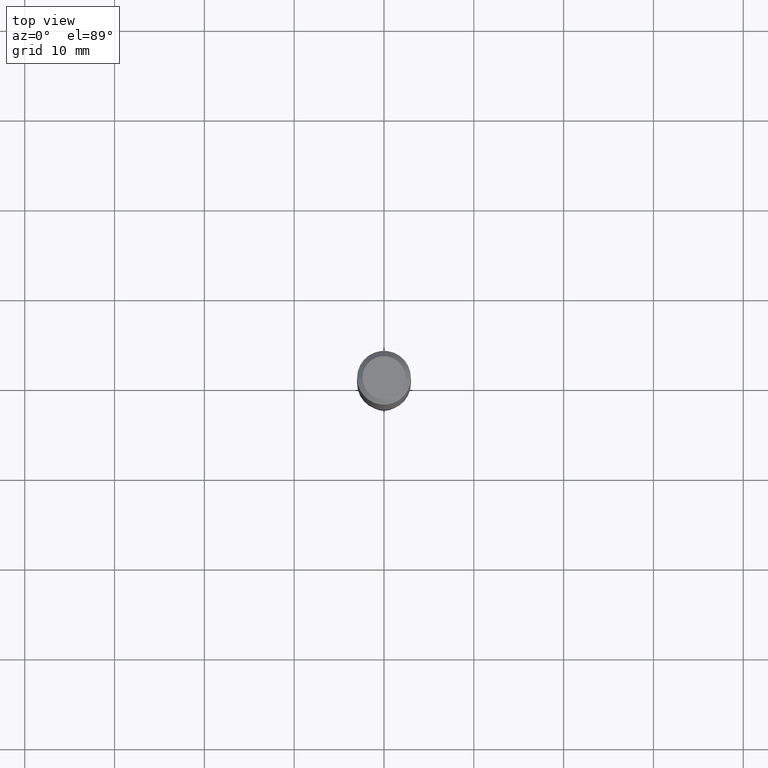
[diagram: clean part render]
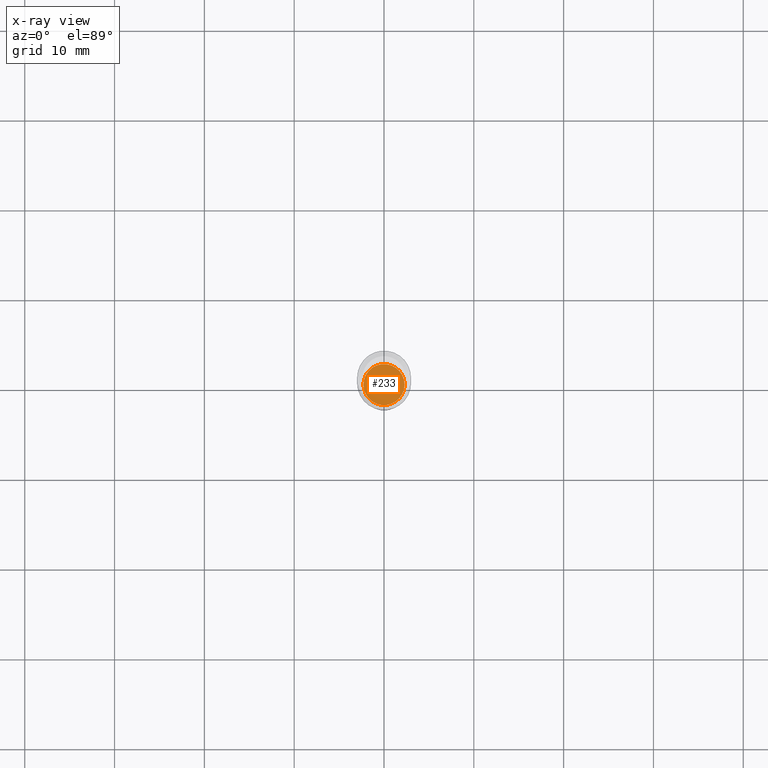
[diagram: x-ray — body ghosted, one internal face saturated and labeled with its STEP entity id]
A machine part, top view, then the same camera in x-ray: the body is ghosted and one INTERNAL B-rep face — a face not visible from any outside direction — is saturated and labeled: STEP entity #233.
In plain terms, the highlighted planar face has unit normal (-0, 0, 1).
Its self-contained STEP definition (entity closure, byte-faithful):
#32 = DIRECTION ( 'NONE',  ( -2.445468806185136597E-29, 3.491481338843145583E-15, 1.000000000000000000 ) ) ;
#38 = AXIS2_PLACEMENT_3D ( 'NONE', #381, #190, #197 ) ;
#39 = DIRECTION ( 'NONE',  ( 1.000000000000000000, -6.982962677686265922E-15, 4.876176775795935793E-29 ) ) ;
#44 = AXIS2_PLACEMENT_3D ( 'NONE', #345, #458, #39 ) ;
#55 = EDGE_LOOP ( 'NONE', ( #251, #116 ) ) ;
#79 = CIRCLE ( 'NONE', #149, 0.09005000000000000504 ) ;
#93 = VERTEX_POINT ( 'NONE', #374 ) ;
#113 = DIRECTION ( 'NONE',  ( 1.000000000000000000, -6.982962677686271444E-15, 0.000000000000000000 ) ) ;
#116 = ORIENTED_EDGE ( 'NONE', *, *, #237, .F. ) ;
#149 = AXIS2_PLACEMENT_3D ( 'NONE', #326, #32, #113 ) ;
#190 = DIRECTION ( 'NONE',  ( -2.445468806185136597E-29, 3.491481338843145583E-15, 1.000000000000000000 ) ) ;
#197 = DIRECTION ( 'NONE',  ( 1.000000000000000000, -6.982962677686271444E-15, 0.000000000000000000 ) ) ;
#233 = ADVANCED_FACE ( 'NONE', ( #418 ), #311, .F. ) ;
#237 = EDGE_CURVE ( 'NONE', #93, #468, #429, .T. ) ;
#241 = CARTESIAN_POINT ( 'NONE',  ( 0.09005000000000000504, -6.814673277154051910E-15, -1.771700000000000719 ) ) ;
#251 = ORIENTED_EDGE ( 'NONE', *, *, #471, .F. ) ;
#311 = PLANE ( 'NONE',  #44 ) ;
#326 = CARTESIAN_POINT ( 'NONE',  ( 4.332637083918208108E-29, -6.185857488028402659E-15, -1.771700000000000719 ) ) ;
#345 = CARTESIAN_POINT ( 'NONE',  ( 5.794283403838629838E-30, -1.156066602814497947E-14, -1.771700000000000719 ) ) ;
#374 = CARTESIAN_POINT ( 'NONE',  ( -0.09005000000000000504, -5.543364527302321501E-15, -1.771700000000000719 ) ) ;
#381 = CARTESIAN_POINT ( 'NONE',  ( 4.332637083918208108E-29, -6.185857488028402659E-15, -1.771700000000000719 ) ) ;
#418 = FACE_OUTER_BOUND ( 'NONE', #55, .T. ) ;
#429 = CIRCLE ( 'NONE', #38, 0.09005000000000000504 ) ;
#458 = DIRECTION ( 'NONE',  ( -2.438088387897960049E-29, 3.491481338843145188E-15, 1.000000000000000000 ) ) ;
#468 = VERTEX_POINT ( 'NONE', #241 ) ;
#471 = EDGE_CURVE ( 'NONE', #468, #93, #79, .T. ) ;